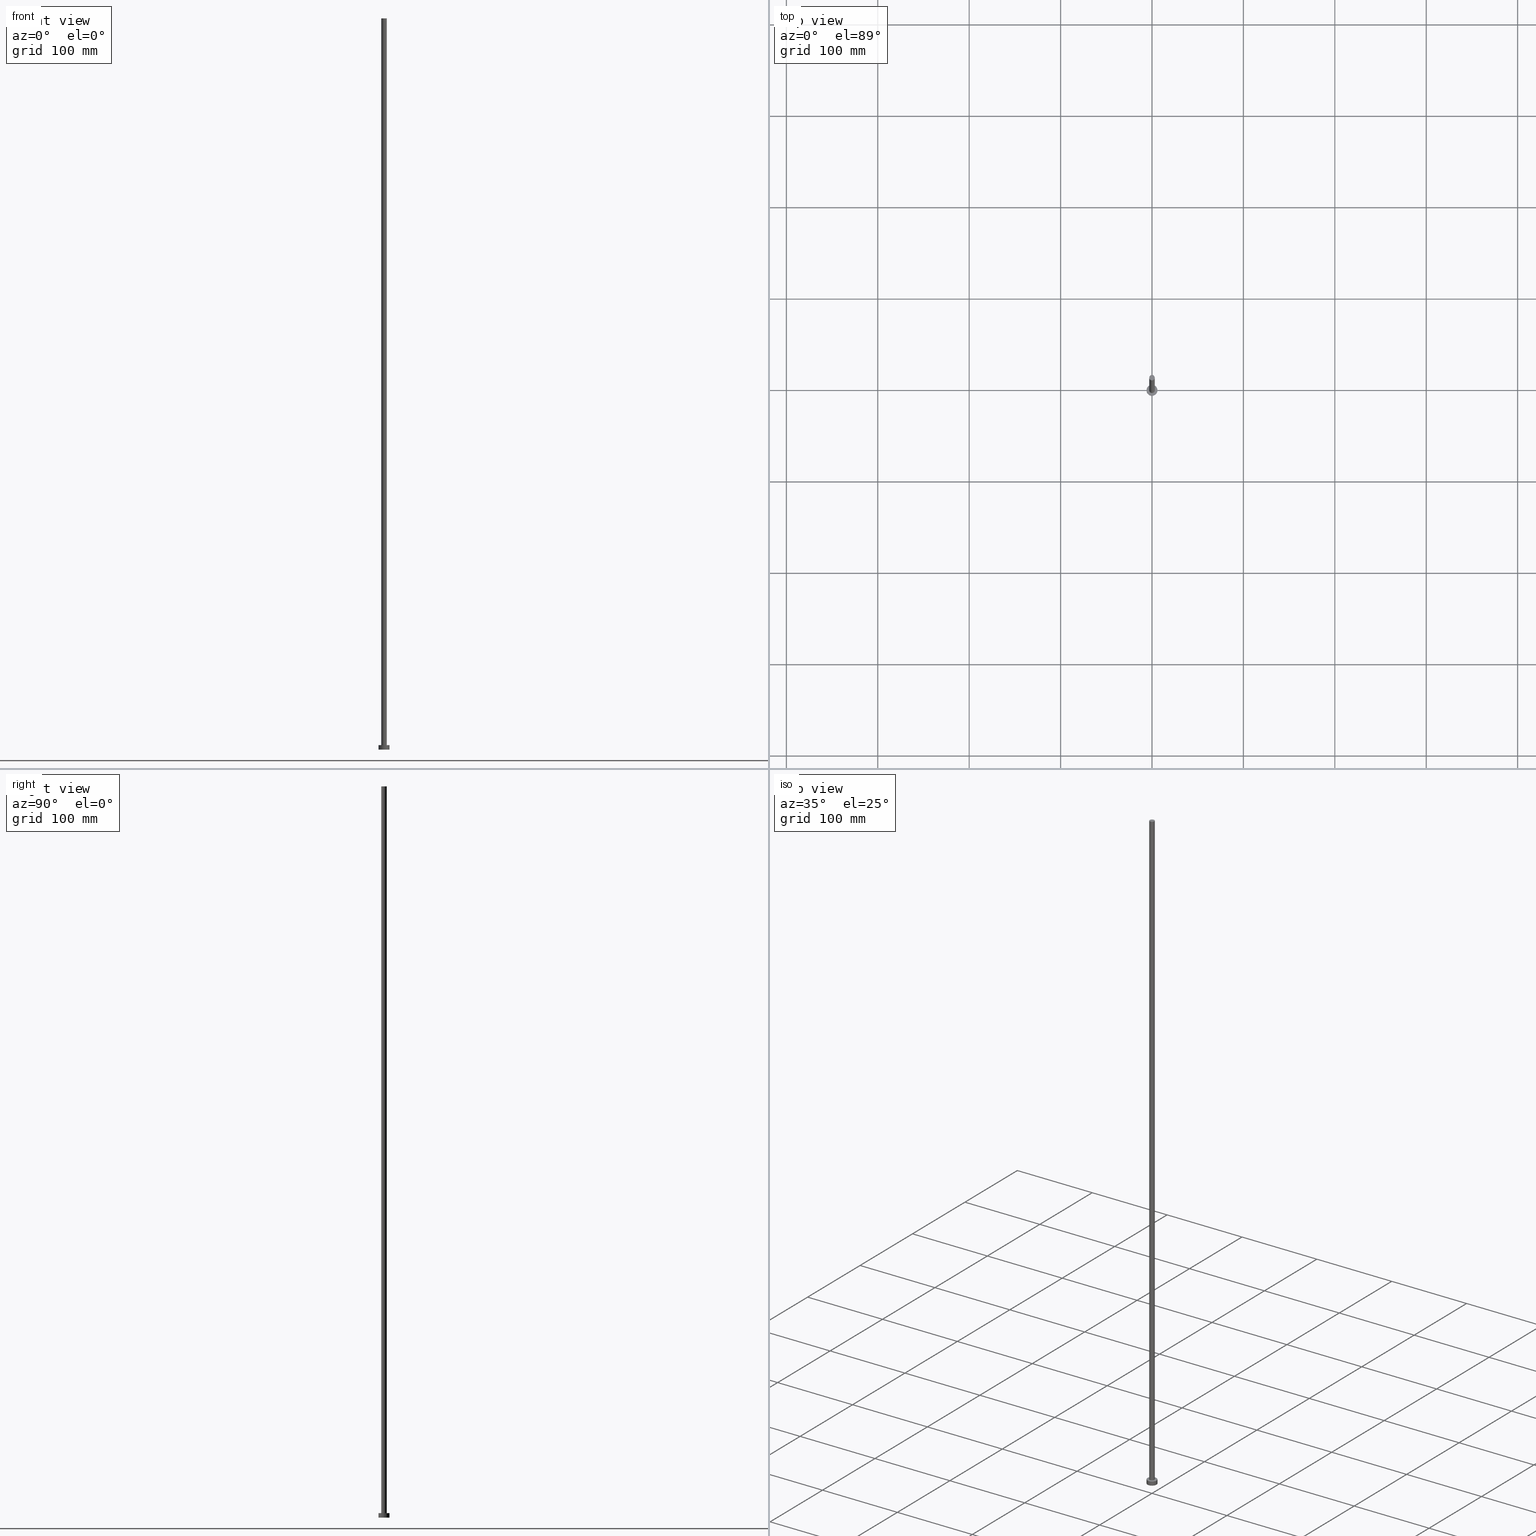
[diagram: canonical four-view strip — front | top / right | iso, engineering-drawing reading convention]
A machine part, canonical four-view strip (front | top / right | iso — engineering-drawing reading convention). The complete STEP part file that produces these views, byte-faithful:
ISO-10303-21;
HEADER;
FILE_DESCRIPTION (( 'STEP AP203' ),
    '1' );
FILE_NAME ('8ba2.STEP',
    '2023-02-13T14:06:36',
    ( '' ),
    ( '' ),
    'SwSTEP 2.0',
    'SolidWorks 2019',
    '' );
FILE_SCHEMA (( 'CONFIG_CONTROL_DESIGN' ));
ENDSEC;

DATA;
#1 = ORIENTED_EDGE ( 'NONE', *, *, #185, .F. ) ;
#2 = DIRECTION ( 'NONE',  ( 0.000000000000000000, 0.000000000000000000, 1.000000000000000000 ) ) ;
#3 = VERTEX_POINT ( 'NONE', #206 ) ;
#4 = LINE ( 'NONE', #81, #72 ) ;
#5 = DIRECTION ( 'NONE',  ( 0.000000000000000000, 0.000000000000000000, 1.000000000000000000 ) ) ;
#6 = APPLICATION_CONTEXT ( 'configuration controlled 3d designs of mechanical parts and assemblies' ) ;
#7 = CARTESIAN_POINT ( 'NONE',  ( 0.000000000000000000, 0.000000000000000000, 0.000000000000000000 ) ) ;
#8 = PERSON_AND_ORGANIZATION ( #92, #252 ) ;
#9 = CC_DESIGN_PERSON_AND_ORGANIZATION_ASSIGNMENT ( #209, #110, ( #182 ) ) ;
#10 = CARTESIAN_POINT ( 'NONE',  ( -6.000000000000000888, 0.000000000000000000, 5.000000000000000000 ) ) ;
#11 = DATE_AND_TIME ( #195, #173 ) ;
#12 = PLANE ( 'NONE',  #30 ) ;
#13 = COORDINATED_UNIVERSAL_TIME_OFFSET ( 1, 0, .AHEAD. ) ;
#14 = CARTESIAN_POINT ( 'NONE',  ( -6.000000000000000888, 0.000000000000000000, 5.000000000000000000 ) ) ;
#15 = CIRCLE ( 'NONE', #105, 3.000000000000000444 ) ;
#16 = DATE_AND_TIME ( #168, #125 ) ;
#17 = VECTOR ( 'NONE', #159, 1000.000000000000000 ) ;
#18 = DIRECTION ( 'NONE',  ( -1.000000000000000000, 0.000000000000000000, 0.000000000000000000 ) ) ;
#19 = CIRCLE ( 'NONE', #154, 3.000000000000000444 ) ;
#20 = ORIENTED_EDGE ( 'NONE', *, *, #253, .F. ) ;
#21 = CARTESIAN_POINT ( 'NONE',  ( 0.000000000000000000, 0.000000000000000000, 5.000000000000000000 ) ) ;
#22 = CARTESIAN_POINT ( 'NONE',  ( -3.000000000000000444, 0.000000000000000000, 800.0000000000000000 ) ) ;
#23 = AXIS2_PLACEMENT_3D ( 'NONE', #243, #249, #100 ) ;
#24 = MECHANICAL_CONTEXT ( 'NONE', #6, 'mechanical' ) ;
#25 = CARTESIAN_POINT ( 'NONE',  ( 3.000000000000000444, 3.673940397442060361E-16, 800.0000000000000000 ) ) ;
#26 = SECURITY_CLASSIFICATION ( '', '', #232 ) ;
#27 = VERTEX_POINT ( 'NONE', #80 ) ;
#28 = CC_DESIGN_DATE_AND_TIME_ASSIGNMENT ( #89, #66, ( #26 ) ) ;
#29 = DIRECTION ( 'NONE',  ( 1.000000000000000000, 0.000000000000000000, 0.000000000000000000 ) ) ;
#30 = AXIS2_PLACEMENT_3D ( 'NONE', #199, #251, #116 ) ;
#31 = EDGE_CURVE ( 'NONE', #3, #222, #43, .T. ) ;
#32 = APPROVAL_ROLE ( '' ) ;
#33 = APPROVAL_STATUS ( 'not_yet_approved' ) ;
#34 = DIRECTION ( 'NONE',  ( 0.000000000000000000, 0.000000000000000000, 1.000000000000000000 ) ) ;
#35 = CALENDAR_DATE ( 2023, 13, 2 ) ;
#36 = APPROVAL_PERSON_ORGANIZATION ( #218, #71, #32 ) ;
#37 = CALENDAR_DATE ( 2023, 13, 2 ) ;
#38 = CARTESIAN_POINT ( 'NONE',  ( 0.000000000000000000, 0.000000000000000000, 5.000000000000000000 ) ) ;
#39 = ORIENTED_EDGE ( 'NONE', *, *, #74, .F. ) ;
#40 = EDGE_CURVE ( 'NONE', #3, #123, #184, .T. ) ;
#41 = ORIENTED_EDGE ( 'NONE', *, *, #55, .F. ) ;
#42 = DIRECTION ( 'NONE',  ( 1.000000000000000000, 0.000000000000000000, 0.000000000000000000 ) ) ;
#43 = CIRCLE ( 'NONE', #192, 3.000000000000000444 ) ;
#44 = ORIENTED_EDGE ( 'NONE', *, *, #31, .T. ) ;
#45 = AXIS2_PLACEMENT_3D ( 'NONE', #250, #91, #73 ) ;
#46 = PLANE ( 'NONE',  #76 ) ;
#47 = AXIS2_PLACEMENT_3D ( 'NONE', #214, #166, #213 ) ;
#48 = APPROVAL_STATUS ( 'not_yet_approved' ) ;
#49 = PERSON_AND_ORGANIZATION ( #92, #252 ) ;
#50 = FACE_OUTER_BOUND ( 'NONE', #238, .T. ) ;
#51 = PERSON_AND_ORGANIZATION ( #92, #252 ) ;
#52 = APPROVAL_PERSON_ORGANIZATION ( #49, #196, #104 ) ;
#53 = DIRECTION ( 'NONE',  ( -0.000000000000000000, -0.000000000000000000, -1.000000000000000000 ) ) ;
#54 = FACE_BOUND ( 'NONE', #144, .T. ) ;
#55 = EDGE_CURVE ( 'NONE', #222, #27, #59, .T. ) ;
#56 = ORIENTED_EDGE ( 'NONE', *, *, #208, .F. ) ;
#57 = CIRCLE ( 'NONE', #23, 6.000000000000000888 ) ;
#58 = EDGE_CURVE ( 'NONE', #183, #210, #203, .T. ) ;
#59 = LINE ( 'NONE', #22, #129 ) ;
#60 = DIRECTION ( 'NONE',  ( 0.000000000000000000, 0.000000000000000000, 1.000000000000000000 ) ) ;
#61 = EDGE_LOOP ( 'NONE', ( #39, #20, #224, #207 ) ) ;
#62 = ORIENTED_EDGE ( 'NONE', *, *, #40, .T. ) ;
#63 = LOCAL_TIME ( 15, 6, 36.00000000000000000, #102 ) ;
#64 = DIRECTION ( 'NONE',  ( 0.000000000000000000, 0.000000000000000000, 1.000000000000000000 ) ) ;
#65 = CARTESIAN_POINT ( 'NONE',  ( 0.000000000000000000, 0.000000000000000000, 800.0000000000000000 ) ) ;
#66 = DATE_TIME_ROLE ( 'classification_date' ) ;
#67 = CARTESIAN_POINT ( 'NONE',  ( 0.000000000000000000, 0.000000000000000000, 5.000000000000000000 ) ) ;
#68 = DIRECTION ( 'NONE',  ( 1.000000000000000000, 0.000000000000000000, -0.000000000000000000 ) ) ;
#69 = APPLICATION_PROTOCOL_DEFINITION ( 'international standard', 'config_control_design', 1994, #122 ) ;
#70 = CARTESIAN_POINT ( 'NONE',  ( 6.000000000000000888, 7.347880794884120722E-16, 0.000000000000000000 ) ) ;
#71 = APPROVAL ( #112, 'NEUR�EN�' ) ;
#72 = VECTOR ( 'NONE', #186, 1000.000000000000000 ) ;
#73 = DIRECTION ( 'NONE',  ( 1.000000000000000000, 0.000000000000000000, 0.000000000000000000 ) ) ;
#74 = EDGE_CURVE ( 'NONE', #77, #183, #4, .T. ) ;
#75 = PRODUCT_DEFINITION_SHAPE ( 'NONE', 'NONE',  #106 ) ;
#76 = AXIS2_PLACEMENT_3D ( 'NONE', #146, #187, #68 ) ;
#77 = VERTEX_POINT ( 'NONE', #82 ) ;
#78 = ORIENTED_EDGE ( 'NONE', *, *, #151, .F. ) ;
#79 = CC_DESIGN_APPROVAL ( #236, ( #106 ) ) ;
#80 = CARTESIAN_POINT ( 'NONE',  ( -3.000000000000000444, 0.000000000000000000, 5.000000000000000000 ) ) ;
#81 = CARTESIAN_POINT ( 'NONE',  ( 6.000000000000000888, 7.347880794884120722E-16, 5.000000000000000000 ) ) ;
#82 = CARTESIAN_POINT ( 'NONE',  ( 6.000000000000000888, 7.347880794884120722E-16, 5.000000000000000000 ) ) ;
#83 = EDGE_CURVE ( 'NONE', #210, #183, #57, .T. ) ;
#84 = DATE_AND_TIME ( #198, #63 ) ;
#85 = DIRECTION ( 'NONE',  ( 1.000000000000000000, 0.000000000000000000, -0.000000000000000000 ) ) ;
#86 = APPROVAL_DATE_TIME ( #11, #196 ) ;
#87 = DIRECTION ( 'NONE',  ( -1.000000000000000000, 0.000000000000000000, 0.000000000000000000 ) ) ;
#88 = SHAPE_DEFINITION_REPRESENTATION ( #75, #189 ) ;
#89 = DATE_AND_TIME ( #35, #164 ) ;
#90 = CYLINDRICAL_SURFACE ( 'NONE', #202, 3.000000000000000444 ) ;
#91 = DIRECTION ( 'NONE',  ( 0.000000000000000000, 0.000000000000000000, 1.000000000000000000 ) ) ;
#92 = PERSON ( 'NEUR�EN�', 'NEUR�EN�', 'NEUR�EN�', ('NEUR�EN�'), ('NEUR�EN�'), ('NEUR�EN�') ) ;
#93 = ORIENTED_EDGE ( 'NONE', *, *, #40, .F. ) ;
#94 = ORIENTED_EDGE ( 'NONE', *, *, #31, .F. ) ;
#95 =( NAMED_UNIT ( * ) PLANE_ANGLE_UNIT ( ) SI_UNIT ( $, .RADIAN. ) );
#96 = DIRECTION ( 'NONE',  ( 1.000000000000000000, 0.000000000000000000, 0.000000000000000000 ) ) ;
#97 = AXIS2_PLACEMENT_3D ( 'NONE', #38, #180, #87 ) ;
#98 = CARTESIAN_POINT ( 'NONE',  ( 0.000000000000000000, 0.000000000000000000, 0.000000000000000000 ) ) ;
#99 = EDGE_LOOP ( 'NONE', ( #93, #155, #255, #226 ) ) ;
#100 = DIRECTION ( 'NONE',  ( 1.000000000000000000, 0.000000000000000000, 0.000000000000000000 ) ) ;
#101 = PLANE ( 'NONE',  #211 ) ;
#102 = COORDINATED_UNIVERSAL_TIME_OFFSET ( 1, 0, .AHEAD. ) ;
#103 = FACE_OUTER_BOUND ( 'NONE', #178, .T. ) ;
#104 = APPROVAL_ROLE ( '' ) ;
#105 = AXIS2_PLACEMENT_3D ( 'NONE', #65, #64, #29 ) ;
#106 = PRODUCT_DEFINITION ( 'NEZN�M�', '', #244, #254 ) ;
#107 = CARTESIAN_POINT ( 'NONE',  ( 0.000000000000000000, 0.000000000000000000, 800.0000000000000000 ) ) ;
#108 = COORDINATED_UNIVERSAL_TIME_OFFSET ( 1, 0, .AHEAD. ) ;
#109 = CARTESIAN_POINT ( 'NONE',  ( -3.000000000000000444, 0.000000000000000000, 800.0000000000000000 ) ) ;
#110 = PERSON_AND_ORGANIZATION_ROLE ( 'design_owner' ) ;
#111 =( NAMED_UNIT ( * ) SI_UNIT ( $, .STERADIAN. ) SOLID_ANGLE_UNIT ( ) );
#112 = APPROVAL_STATUS ( 'not_yet_approved' ) ;
#113 = AXIS2_PLACEMENT_3D ( 'NONE', #67, #34, #127 ) ;
#114 =( LENGTH_UNIT ( ) NAMED_UNIT ( * ) SI_UNIT ( .MILLI., .METRE. ) );
#115 = AXIS2_PLACEMENT_3D ( 'NONE', #107, #194, #169 ) ;
#116 = DIRECTION ( 'NONE',  ( 1.000000000000000000, 0.000000000000000000, -0.000000000000000000 ) ) ;
#117 = CC_DESIGN_PERSON_AND_ORGANIZATION_ASSIGNMENT ( #248, #233, ( #106 ) ) ;
#118 = VERTEX_POINT ( 'NONE', #10 ) ;
#119 = FACE_OUTER_BOUND ( 'NONE', #99, .T. ) ;
#120 = CARTESIAN_POINT ( 'NONE',  ( 0.000000000000000000, 0.000000000000000000, 800.0000000000000000 ) ) ;
#121 = ADVANCED_FACE ( 'NONE', ( #149 ), #46, .T. ) ;
#122 = APPLICATION_CONTEXT ( 'configuration controlled 3d designs of mechanical parts and assemblies' ) ;
#123 = VERTEX_POINT ( 'NONE', #126 ) ;
#124 = DIRECTION ( 'NONE',  ( -0.000000000000000000, -0.000000000000000000, -1.000000000000000000 ) ) ;
#125 = LOCAL_TIME ( 15, 6, 36.00000000000000000, #174 ) ;
#126 = CARTESIAN_POINT ( 'NONE',  ( 3.000000000000000444, 3.673940397442060361E-16, 5.000000000000000000 ) ) ;
#127 = DIRECTION ( 'NONE',  ( 1.000000000000000000, 0.000000000000000000, 0.000000000000000000 ) ) ;
#128 = CC_DESIGN_PERSON_AND_ORGANIZATION_ASSIGNMENT ( #8, #193, ( #244 ) ) ;
#129 = VECTOR ( 'NONE', #140, 1000.000000000000000 ) ;
#130 = PERSON_AND_ORGANIZATION ( #92, #252 ) ;
#131 = CC_DESIGN_APPROVAL ( #71, ( #244 ) ) ;
#132 = DIRECTION ( 'NONE',  ( -0.000000000000000000, -0.000000000000000000, -1.000000000000000000 ) ) ;
#133 = DATE_TIME_ROLE ( 'creation_date' ) ;
#134 = FACE_OUTER_BOUND ( 'NONE', #223, .T. ) ;
#135 = CIRCLE ( 'NONE', #45, 6.000000000000000888 ) ;
#136 = ADVANCED_FACE ( 'NONE', ( #50 ), #101, .F. ) ;
#137 = CLOSED_SHELL ( 'NONE', ( #190, #245, #231, #221, #136, #204, #121 ) ) ;
#138 = ORIENTED_EDGE ( 'NONE', *, *, #74, .T. ) ;
#139 = AXIS2_PLACEMENT_3D ( 'NONE', #165, #141, #42 ) ;
#140 = DIRECTION ( 'NONE',  ( -0.000000000000000000, -0.000000000000000000, -1.000000000000000000 ) ) ;
#141 = DIRECTION ( 'NONE',  ( 0.000000000000000000, 0.000000000000000000, 1.000000000000000000 ) ) ;
#142 = ORIENTED_EDGE ( 'NONE', *, *, #58, .T. ) ;
#143 = LOCAL_TIME ( 15, 6, 36.00000000000000000, #170 ) ;
#144 = EDGE_LOOP ( 'NONE', ( #161, #78 ) ) ;
#145 = PRODUCT_RELATED_PRODUCT_CATEGORY ( 'detail', '', ( #182 ) ) ;
#146 = CARTESIAN_POINT ( 'NONE',  ( 0.000000000000000000, 0.000000000000000000, 800.0000000000000000 ) ) ;
#147 = AXIS2_PLACEMENT_3D ( 'NONE', #98, #5, #96 ) ;
#148 = EDGE_CURVE ( 'NONE', #222, #3, #15, .T. ) ;
#149 = FACE_OUTER_BOUND ( 'NONE', #162, .T. ) ;
#150 = APPROVAL_ROLE ( '' ) ;
#151 = EDGE_CURVE ( 'NONE', #123, #27, #157, .T. ) ;
#152 = DIRECTION ( 'NONE',  ( -1.000000000000000000, 0.000000000000000000, 0.000000000000000000 ) ) ;
#153 = CC_DESIGN_PERSON_AND_ORGANIZATION_ASSIGNMENT ( #130, #191, ( #26 ) ) ;
#154 = AXIS2_PLACEMENT_3D ( 'NONE', #21, #2, #197 ) ;
#155 = ORIENTED_EDGE ( 'NONE', *, *, #148, .F. ) ;
#156 = CARTESIAN_POINT ( 'NONE',  ( 0.000000000000000000, 0.000000000000000000, 800.0000000000000000 ) ) ;
#157 = CIRCLE ( 'NONE', #47, 3.000000000000000444 ) ;
#158 = ORIENTED_EDGE ( 'NONE', *, *, #58, .F. ) ;
#159 = DIRECTION ( 'NONE',  ( -0.000000000000000000, -0.000000000000000000, -1.000000000000000000 ) ) ;
#160 = CC_DESIGN_PERSON_AND_ORGANIZATION_ASSIGNMENT ( #171, #200, ( #244 ) ) ;
#161 = ORIENTED_EDGE ( 'NONE', *, *, #212, .F. ) ;
#162 = EDGE_LOOP ( 'NONE', ( #163, #44 ) ) ;
#163 = ORIENTED_EDGE ( 'NONE', *, *, #148, .T. ) ;
#164 = LOCAL_TIME ( 15, 6, 36.00000000000000000, #13 ) ;
#165 = CARTESIAN_POINT ( 'NONE',  ( 0.000000000000000000, 0.000000000000000000, 0.000000000000000000 ) ) ;
#166 = DIRECTION ( 'NONE',  ( 0.000000000000000000, 0.000000000000000000, 1.000000000000000000 ) ) ;
#167 = CC_DESIGN_SECURITY_CLASSIFICATION ( #26, ( #244 ) ) ;
#168 = CALENDAR_DATE ( 2023, 13, 2 ) ;
#169 = DIRECTION ( 'NONE',  ( -1.000000000000000000, 0.000000000000000000, 0.000000000000000000 ) ) ;
#170 = COORDINATED_UNIVERSAL_TIME_OFFSET ( 1, 0, .AHEAD. ) ;
#171 = PERSON_AND_ORGANIZATION ( #92, #252 ) ;
#172 = CARTESIAN_POINT ( 'NONE',  ( -6.000000000000000888, 0.000000000000000000, 0.000000000000000000 ) ) ;
#173 = LOCAL_TIME ( 15, 6, 36.00000000000000000, #108 ) ;
#174 = COORDINATED_UNIVERSAL_TIME_OFFSET ( 1, 0, .AHEAD. ) ;
#175 = FACE_OUTER_BOUND ( 'NONE', #228, .T. ) ;
#176 = VECTOR ( 'NONE', #124, 1000.000000000000000 ) ;
#177 = APPROVAL_PERSON_ORGANIZATION ( #51, #236, #150 ) ;
#178 = EDGE_LOOP ( 'NONE', ( #94, #62, #179, #41 ) ) ;
#179 = ORIENTED_EDGE ( 'NONE', *, *, #151, .T. ) ;
#180 = DIRECTION ( 'NONE',  ( -0.000000000000000000, -0.000000000000000000, -1.000000000000000000 ) ) ;
#181 = MANIFOLD_SOLID_BREP ( 'P�idat vysunut�m3', #137 ) ;
#182 = PRODUCT ( '8ba2', '8ba2', '', ( #24 ) ) ;
#183 = VERTEX_POINT ( 'NONE', #70 ) ;
#184 = LINE ( 'NONE', #25, #176 ) ;
#185 = EDGE_CURVE ( 'NONE', #77, #118, #230, .T. ) ;
#186 = DIRECTION ( 'NONE',  ( -0.000000000000000000, -0.000000000000000000, -1.000000000000000000 ) ) ;
#187 = DIRECTION ( 'NONE',  ( 0.000000000000000000, 0.000000000000000000, 1.000000000000000000 ) ) ;
#188 = DIRECTION ( 'NONE',  ( 0.000000000000000000, 0.000000000000000000, 1.000000000000000000 ) ) ;
#189 = ADVANCED_BREP_SHAPE_REPRESENTATION ( '8ba2', ( #181, #139 ), #227 ) ;
#190 = ADVANCED_FACE ( 'NONE', ( #103 ), #229, .T. ) ;
#191 = PERSON_AND_ORGANIZATION_ROLE ( 'classification_officer' ) ;
#192 = AXIS2_PLACEMENT_3D ( 'NONE', #120, #60, #237 ) ;
#193 = PERSON_AND_ORGANIZATION_ROLE ( 'creator' ) ;
#194 = DIRECTION ( 'NONE',  ( -0.000000000000000000, -0.000000000000000000, -1.000000000000000000 ) ) ;
#195 = CALENDAR_DATE ( 2023, 13, 2 ) ;
#196 = APPROVAL ( #33, 'NEUR�EN�' ) ;
#197 = DIRECTION ( 'NONE',  ( 1.000000000000000000, 0.000000000000000000, 0.000000000000000000 ) ) ;
#198 = CALENDAR_DATE ( 2023, 13, 2 ) ;
#199 = CARTESIAN_POINT ( 'NONE',  ( 0.000000000000000000, 0.000000000000000000, 5.000000000000000000 ) ) ;
#200 = PERSON_AND_ORGANIZATION_ROLE ( 'design_supplier' ) ;
#201 = LINE ( 'NONE', #14, #17 ) ;
#202 = AXIS2_PLACEMENT_3D ( 'NONE', #156, #53, #152 ) ;
#203 = CIRCLE ( 'NONE', #147, 6.000000000000000888 ) ;
#204 = ADVANCED_FACE ( 'NONE', ( #119 ), #90, .T. ) ;
#205 = ORIENTED_EDGE ( 'NONE', *, *, #185, .T. ) ;
#206 = CARTESIAN_POINT ( 'NONE',  ( 3.000000000000000444, 3.673940397442060361E-16, 800.0000000000000000 ) ) ;
#207 = ORIENTED_EDGE ( 'NONE', *, *, #83, .T. ) ;
#208 = EDGE_CURVE ( 'NONE', #118, #210, #201, .T. ) ;
#209 = PERSON_AND_ORGANIZATION ( #92, #252 ) ;
#210 = VERTEX_POINT ( 'NONE', #172 ) ;
#211 = AXIS2_PLACEMENT_3D ( 'NONE', #7, #188, #85 ) ;
#212 = EDGE_CURVE ( 'NONE', #27, #123, #19, .T. ) ;
#213 = DIRECTION ( 'NONE',  ( 1.000000000000000000, 0.000000000000000000, 0.000000000000000000 ) ) ;
#214 = CARTESIAN_POINT ( 'NONE',  ( 0.000000000000000000, 0.000000000000000000, 5.000000000000000000 ) ) ;
#215 = APPROVAL_DATE_TIME ( #84, #71 ) ;
#216 = CYLINDRICAL_SURFACE ( 'NONE', #239, 6.000000000000000888 ) ;
#217 = DATE_AND_TIME ( #37, #143 ) ;
#218 = PERSON_AND_ORGANIZATION ( #92, #252 ) ;
#219 = CYLINDRICAL_SURFACE ( 'NONE', #97, 6.000000000000000888 ) ;
#220 = APPLICATION_PROTOCOL_DEFINITION ( 'international standard', 'config_control_design', 1994, #6 ) ;
#221 = ADVANCED_FACE ( 'NONE', ( #54, #175 ), #12, .T. ) ;
#222 = VERTEX_POINT ( 'NONE', #109 ) ;
#223 = EDGE_LOOP ( 'NONE', ( #1, #138, #142, #56 ) ) ;
#224 = ORIENTED_EDGE ( 'NONE', *, *, #208, .T. ) ;
#225 = CC_DESIGN_DATE_AND_TIME_ASSIGNMENT ( #217, #133, ( #106 ) ) ;
#226 = ORIENTED_EDGE ( 'NONE', *, *, #212, .T. ) ;
#227 =( GEOMETRIC_REPRESENTATION_CONTEXT ( 3 ) GLOBAL_UNCERTAINTY_ASSIGNED_CONTEXT ( ( #247 ) ) GLOBAL_UNIT_ASSIGNED_CONTEXT ( ( #114, #95, #111 ) ) REPRESENTATION_CONTEXT ( 'NONE', 'WORKASPACE' ) );
#228 = EDGE_LOOP ( 'NONE', ( #241, #205 ) ) ;
#229 = CYLINDRICAL_SURFACE ( 'NONE', #115, 3.000000000000000444 ) ;
#230 = CIRCLE ( 'NONE', #113, 6.000000000000000888 ) ;
#231 = ADVANCED_FACE ( 'NONE', ( #240 ), #216, .T. ) ;
#232 = SECURITY_CLASSIFICATION_LEVEL ( 'unclassified' ) ;
#233 = PERSON_AND_ORGANIZATION_ROLE ( 'creator' ) ;
#234 = CC_DESIGN_APPROVAL ( #196, ( #26 ) ) ;
#235 = CARTESIAN_POINT ( 'NONE',  ( 0.000000000000000000, 0.000000000000000000, 5.000000000000000000 ) ) ;
#236 = APPROVAL ( #48, 'NEUR�EN�' ) ;
#237 = DIRECTION ( 'NONE',  ( 1.000000000000000000, 0.000000000000000000, 0.000000000000000000 ) ) ;
#238 = EDGE_LOOP ( 'NONE', ( #242, #158 ) ) ;
#239 = AXIS2_PLACEMENT_3D ( 'NONE', #235, #132, #18 ) ;
#240 = FACE_OUTER_BOUND ( 'NONE', #61, .T. ) ;
#241 = ORIENTED_EDGE ( 'NONE', *, *, #253, .T. ) ;
#242 = ORIENTED_EDGE ( 'NONE', *, *, #83, .F. ) ;
#243 = CARTESIAN_POINT ( 'NONE',  ( 0.000000000000000000, 0.000000000000000000, 0.000000000000000000 ) ) ;
#244 = PRODUCT_DEFINITION_FORMATION_WITH_SPECIFIED_SOURCE ( 'LIBOVOLN�', '', #182, .NOT_KNOWN. ) ;
#245 = ADVANCED_FACE ( 'NONE', ( #134 ), #219, .T. ) ;
#246 = APPROVAL_DATE_TIME ( #16, #236 ) ;
#247 = UNCERTAINTY_MEASURE_WITH_UNIT (LENGTH_MEASURE( 1.000000000000000082E-05 ), #114, 'distance_accuracy_value', 'NONE');
#248 = PERSON_AND_ORGANIZATION ( #92, #252 ) ;
#249 = DIRECTION ( 'NONE',  ( 0.000000000000000000, 0.000000000000000000, 1.000000000000000000 ) ) ;
#250 = CARTESIAN_POINT ( 'NONE',  ( 0.000000000000000000, 0.000000000000000000, 5.000000000000000000 ) ) ;
#251 = DIRECTION ( 'NONE',  ( 0.000000000000000000, 0.000000000000000000, 1.000000000000000000 ) ) ;
#252 = ORGANIZATION ( 'NEUR�EN�', 'NEUR�EN�', '' ) ;
#253 = EDGE_CURVE ( 'NONE', #118, #77, #135, .T. ) ;
#254 = DESIGN_CONTEXT ( 'detailed design', #122, 'design' ) ;
#255 = ORIENTED_EDGE ( 'NONE', *, *, #55, .T. ) ;
ENDSEC;
END-ISO-10303-21;
